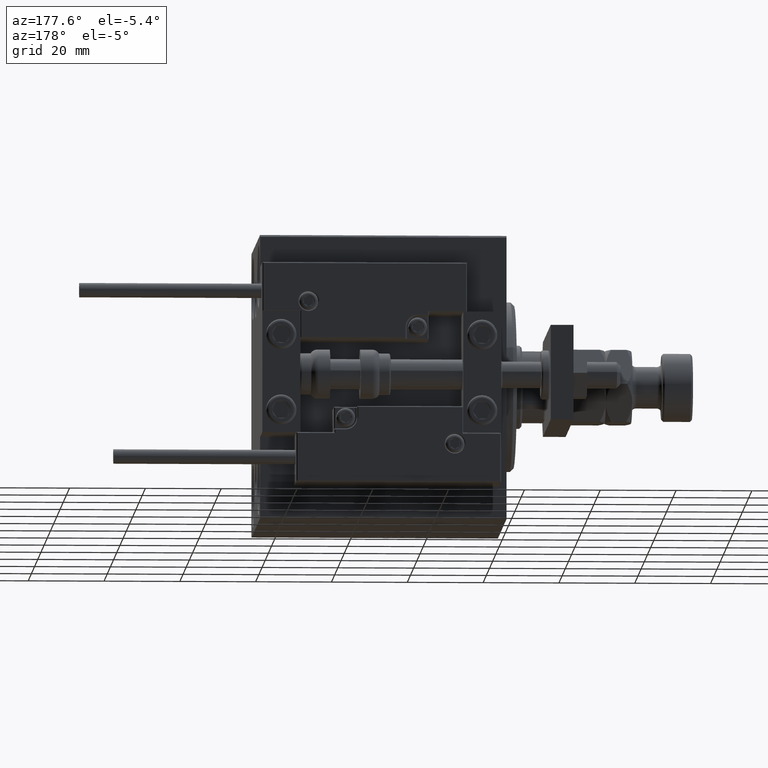
[diagram: clean part render]
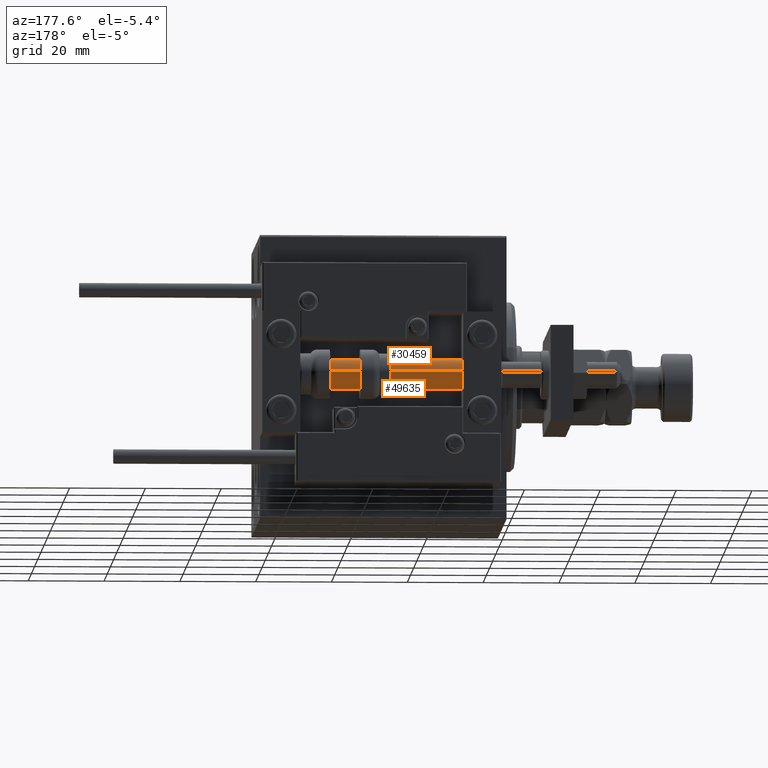
[diagram: same view with one multi-face feature highlighted, each face labeled with its STEP entity id]
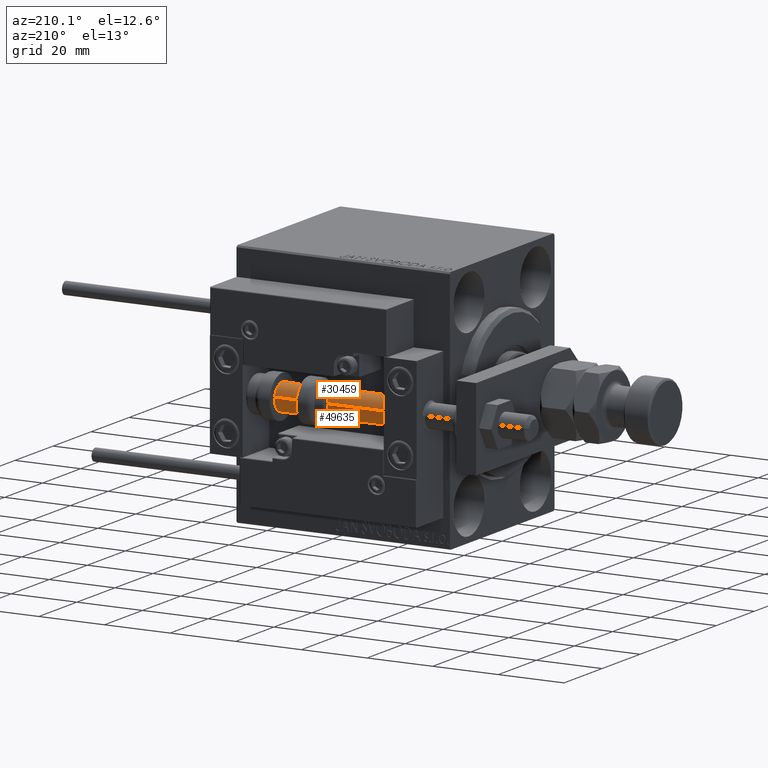
[diagram: same view with one multi-face feature highlighted, each face labeled with its STEP entity id]
A machine part, auxiliary view. The highlighted faces form ONE feature: a constant-radius fillet chain: 2 tangent blend faces with common blend radius 4 mm. The faces share edges in the B-rep.
A second angle (auxiliary view) of the same feature is appended — it is thin or edge-on in the first view.
Their STEP definitions:
[1] entity #49635 (Cylinder):
#3197 = FACE_OUTER_BOUND ( 'NONE', #30787, .T. ) ;
#3824 = EDGE_CURVE ( 'NONE', #18623, #11316, #15531, .T. ) ;
#3874 = CARTESIAN_POINT ( 'NONE',  ( -4.000000000000000000, 0.000000000000000000, 2.000000000000029310 ) ) ;
#3887 = ORIENTED_EDGE ( 'NONE', *, *, #3824, .F. ) ;
#4119 = CARTESIAN_POINT ( 'NONE',  ( 4.000000000000000000, 4.898587196589412829E-16, 65.00000000000000000 ) ) ;
#5716 = AXIS2_PLACEMENT_3D ( 'NONE', #6233, #26312, #29943 ) ;
#6233 = CARTESIAN_POINT ( 'NONE',  ( 0.000000000000000000, 0.000000000000000000, 65.00000000000000000 ) ) ;
#6942 = VECTOR ( 'NONE', #23606, 1000.000000000000000 ) ;
#7657 = CARTESIAN_POINT ( 'NONE',  ( 4.000000000000000000, 4.898587196589412829E-16, 2.000000000000029310 ) ) ;
#8211 = CARTESIAN_POINT ( 'NONE',  ( 4.000000000000000000, 4.898587196589412829E-16, 65.00000000000000000 ) ) ;
#8917 = VECTOR ( 'NONE', #34091, 1000.000000000000000 ) ;
#11310 = CYLINDRICAL_SURFACE ( 'NONE', #48178, 4.000000000000000000 ) ;
#11316 = VERTEX_POINT ( 'NONE', #7657 ) ;
#12897 = VERTEX_POINT ( 'NONE', #3874 ) ;
#13571 = CARTESIAN_POINT ( 'NONE',  ( 0.000000000000000000, 0.000000000000000000, 2.000000000000029310 ) ) ;
#14335 = DIRECTION ( 'NONE',  ( 1.000000000000000000, 0.000000000000000000, 0.000000000000000000 ) ) ;
#15531 = LINE ( 'NONE', #8211, #6942 ) ;
#15714 = CARTESIAN_POINT ( 'NONE',  ( 0.000000000000000000, 0.000000000000000000, 65.00000000000000000 ) ) ;
#15969 = DIRECTION ( 'NONE',  ( -0.000000000000000000, -0.000000000000000000, -1.000000000000000000 ) ) ;
#17438 = AXIS2_PLACEMENT_3D ( 'NONE', #13571, #37530, #14335 ) ;
#18125 = ORIENTED_EDGE ( 'NONE', *, *, #20839, .T. ) ;
#18227 = LINE ( 'NONE', #30438, #8917 ) ;
#18257 = CIRCLE ( 'NONE', #17438, 4.000000000000000000 ) ;
#18623 = VERTEX_POINT ( 'NONE', #4119 ) ;
#19902 = EDGE_CURVE ( 'NONE', #32940, #18623, #25719, .T. ) ;
#20839 = EDGE_CURVE ( 'NONE', #12897, #11316, #18257, .T. ) ;
#23606 = DIRECTION ( 'NONE',  ( -0.000000000000000000, -0.000000000000000000, -1.000000000000000000 ) ) ;
#24574 = ORIENTED_EDGE ( 'NONE', *, *, #41572, .T. ) ;
#25719 = CIRCLE ( 'NONE', #5716, 4.000000000000000000 ) ;
#26312 = DIRECTION ( 'NONE',  ( 0.000000000000000000, 0.000000000000000000, 1.000000000000000000 ) ) ;
#29943 = DIRECTION ( 'NONE',  ( 1.000000000000000000, 0.000000000000000000, 0.000000000000000000 ) ) ;
#30438 = CARTESIAN_POINT ( 'NONE',  ( -4.000000000000000000, 0.000000000000000000, 65.00000000000000000 ) ) ;
#30787 = EDGE_LOOP ( 'NONE', ( #3887, #49648, #24574, #18125 ) ) ;
#32940 = VERTEX_POINT ( 'NONE', #40443 ) ;
#34091 = DIRECTION ( 'NONE',  ( -0.000000000000000000, -0.000000000000000000, -1.000000000000000000 ) ) ;
#37530 = DIRECTION ( 'NONE',  ( -0.000000000000000000, -0.000000000000000000, 1.000000000000000000 ) ) ;
#40443 = CARTESIAN_POINT ( 'NONE',  ( -4.000000000000000000, 0.000000000000000000, 65.00000000000000000 ) ) ;
#41572 = EDGE_CURVE ( 'NONE', #32940, #12897, #18227, .T. ) ;
#47007 = DIRECTION ( 'NONE',  ( -1.000000000000000000, 0.000000000000000000, 0.000000000000000000 ) ) ;
#48178 = AXIS2_PLACEMENT_3D ( 'NONE', #15714, #15969, #47007 ) ;
#49635 = ADVANCED_FACE ( 'NONE', ( #3197 ), #11310, .T. ) ;
#49648 = ORIENTED_EDGE ( 'NONE', *, *, #19902, .F. ) ;
[2] entity #30459 (Cylinder):
#545 = DIRECTION ( 'NONE',  ( 1.000000000000000000, 0.000000000000000000, 0.000000000000000000 ) ) ;
#3824 = EDGE_CURVE ( 'NONE', #18623, #11316, #15531, .T. ) ;
#3874 = CARTESIAN_POINT ( 'NONE',  ( -4.000000000000000000, 0.000000000000000000, 2.000000000000029310 ) ) ;
#4119 = CARTESIAN_POINT ( 'NONE',  ( 4.000000000000000000, 4.898587196589412829E-16, 65.00000000000000000 ) ) ;
#4453 = DIRECTION ( 'NONE',  ( -0.000000000000000000, -0.000000000000000000, -1.000000000000000000 ) ) ;
#5157 = AXIS2_PLACEMENT_3D ( 'NONE', #48268, #4453, #39407 ) ;
#6942 = VECTOR ( 'NONE', #23606, 1000.000000000000000 ) ;
#7281 = CARTESIAN_POINT ( 'NONE',  ( 0.000000000000000000, 0.000000000000000000, 2.000000000000029310 ) ) ;
#7602 = EDGE_CURVE ( 'NONE', #18623, #32940, #20415, .T. ) ;
#7657 = CARTESIAN_POINT ( 'NONE',  ( 4.000000000000000000, 4.898587196589412829E-16, 2.000000000000029310 ) ) ;
#8211 = CARTESIAN_POINT ( 'NONE',  ( 4.000000000000000000, 4.898587196589412829E-16, 65.00000000000000000 ) ) ;
#8639 = FACE_OUTER_BOUND ( 'NONE', #38068, .T. ) ;
#8917 = VECTOR ( 'NONE', #34091, 1000.000000000000000 ) ;
#11316 = VERTEX_POINT ( 'NONE', #7657 ) ;
#12897 = VERTEX_POINT ( 'NONE', #3874 ) ;
#13334 = CARTESIAN_POINT ( 'NONE',  ( 0.000000000000000000, 0.000000000000000000, 65.00000000000000000 ) ) ;
#15412 = AXIS2_PLACEMENT_3D ( 'NONE', #13334, #45146, #545 ) ;
#15531 = LINE ( 'NONE', #8211, #6942 ) ;
#18227 = LINE ( 'NONE', #30438, #8917 ) ;
#18623 = VERTEX_POINT ( 'NONE', #4119 ) ;
#19886 = CYLINDRICAL_SURFACE ( 'NONE', #5157, 4.000000000000000000 ) ;
#20415 = CIRCLE ( 'NONE', #15412, 4.000000000000000000 ) ;
#23606 = DIRECTION ( 'NONE',  ( -0.000000000000000000, -0.000000000000000000, -1.000000000000000000 ) ) ;
#30438 = CARTESIAN_POINT ( 'NONE',  ( -4.000000000000000000, 0.000000000000000000, 65.00000000000000000 ) ) ;
#30459 = ADVANCED_FACE ( 'NONE', ( #8639 ), #19886, .T. ) ;
#32940 = VERTEX_POINT ( 'NONE', #40443 ) ;
#33845 = AXIS2_PLACEMENT_3D ( 'NONE', #7281, #38565, #35171 ) ;
#34091 = DIRECTION ( 'NONE',  ( -0.000000000000000000, -0.000000000000000000, -1.000000000000000000 ) ) ;
#35171 = DIRECTION ( 'NONE',  ( 1.000000000000000000, 0.000000000000000000, 0.000000000000000000 ) ) ;
#36995 = ORIENTED_EDGE ( 'NONE', *, *, #41572, .F. ) ;
#38068 = EDGE_LOOP ( 'NONE', ( #42787, #48714, #50109, #36995 ) ) ;
#38565 = DIRECTION ( 'NONE',  ( -0.000000000000000000, -0.000000000000000000, 1.000000000000000000 ) ) ;
#39407 = DIRECTION ( 'NONE',  ( -1.000000000000000000, 0.000000000000000000, 0.000000000000000000 ) ) ;
#39635 = CIRCLE ( 'NONE', #33845, 4.000000000000000000 ) ;
#40443 = CARTESIAN_POINT ( 'NONE',  ( -4.000000000000000000, 0.000000000000000000, 65.00000000000000000 ) ) ;
#41572 = EDGE_CURVE ( 'NONE', #32940, #12897, #18227, .T. ) ;
#42787 = ORIENTED_EDGE ( 'NONE', *, *, #7602, .F. ) ;
#44467 = EDGE_CURVE ( 'NONE', #11316, #12897, #39635, .T. ) ;
#45146 = DIRECTION ( 'NONE',  ( 0.000000000000000000, 0.000000000000000000, 1.000000000000000000 ) ) ;
#48268 = CARTESIAN_POINT ( 'NONE',  ( 0.000000000000000000, 0.000000000000000000, 65.00000000000000000 ) ) ;
#48714 = ORIENTED_EDGE ( 'NONE', *, *, #3824, .T. ) ;
#50109 = ORIENTED_EDGE ( 'NONE', *, *, #44467, .T. ) ;